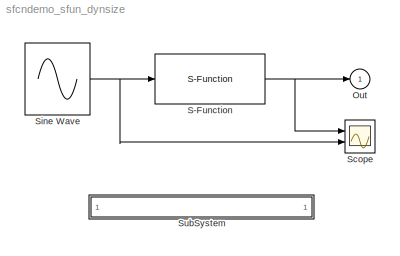
MODEL sfcndemo_sfun_dynsize
KIND model
BLOCK [Outport] Out
  IconDisplay = Port number
  InitialOutput = 0
BLOCK [S-Function] S-Function
  FunctionName = sfun_dynsize
  MaskDisplay = plot([1 NaN 2:6 NaN 19 NaN 1 NaN 2:6 NaN 19], [NaN 0 1 1 2 2 NaN 2 NaN NaN NaN 6 5 5 4 4 NaN 4  NaN]);\ndisp('Dynamic sized vector');
  MaskIconFrame = on
  MaskIconOpaque = on
  MaskIconRotate = none
  MaskIconUnits = autoscale
  MaskType = S-function: sfun_dynsize
  Ports = [1, 1]
BLOCK [Scope] Scope
  DataFormat = StructureWithTime
  NumInputPorts = 2
  Ports = [2]
  YMax = 5~5
  YMin = -5~-5
BLOCK [Sin] Sine Wave
  Amplitude = 1:4
  Ports = [0, 1]
  SampleTime = 0
BLOCK [SubSystem] SubSystem
  MaskDisplay = disp('matlabroot<path>');
  MaskIconFrame = on
  MaskIconOpaque = on
  MaskIconRotate = none
  MaskIconUnits = autoscale
  MinAlgLoopOccurrences = off
  OpenFcn = edit(fullfile(matlabroot,'simulink','src','sfun_dynsize.c'))
  Ports = []
  PropExecContextAcrossSSBoundary = on
  RTWSystemCode = Auto
  TreatAsAtomicUnit = off
NET S-Function:1 -> Out:1, Scope:1
NET Sine Wave:1 -> S-Function:1, Scope:2
note: NET lines group one-source signal fan-out (src -> all destinations, sorted); 1:1 wires keep LINE
note: 1 file-system path scrubbed to <path> (not preserved elsewhere — flat text is the only slx artifact)
